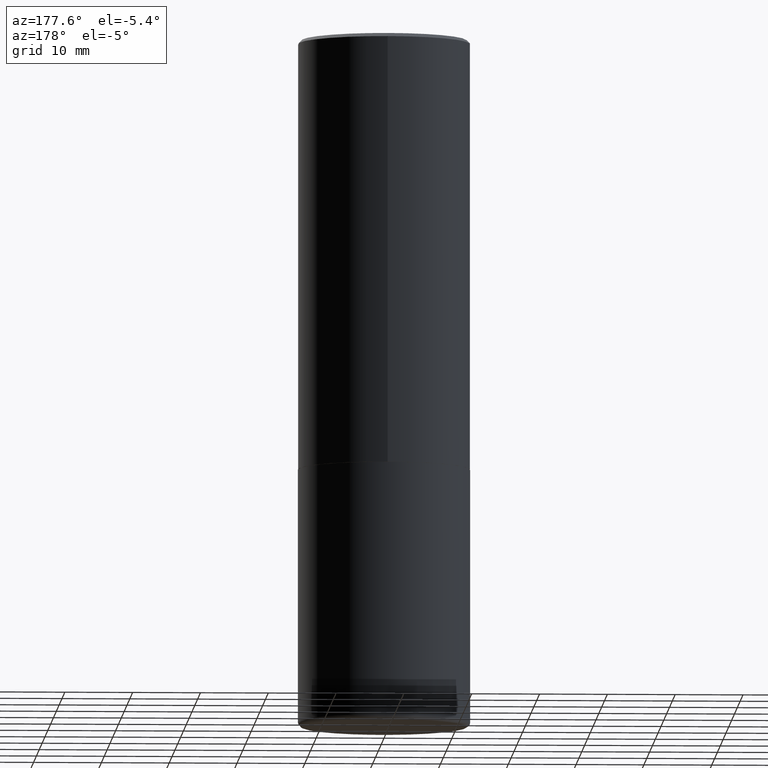
[diagram: clean part render]
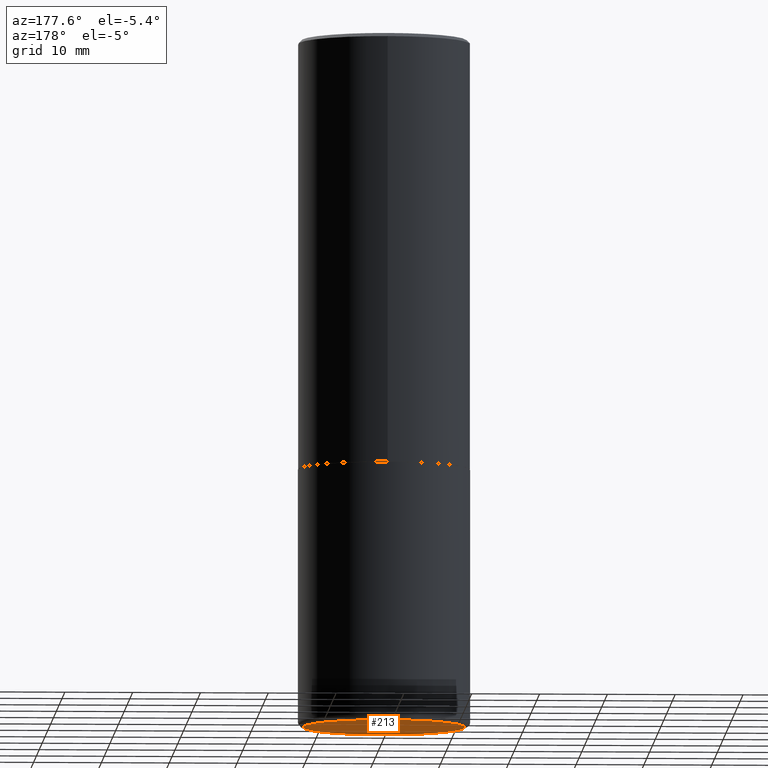
[diagram: same view with one face highlighted and labeled with its STEP entity id]
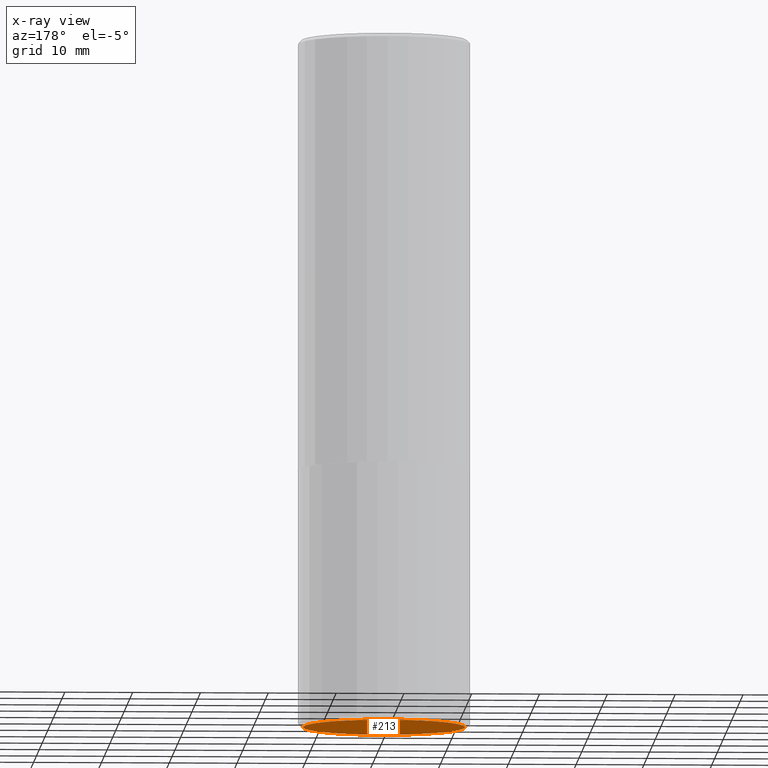
[diagram: x-ray of the same camera — body ghosted, the highlighted face saturated]
A machine part, auxiliary view. The second image highlights one B-rep face of the part: STEP entity #213.
The next image is the same camera in x-ray: the body ghosted, the highlighted face saturated — about 0% of this face is hidden behind the body in this view.
In plain terms, the highlighted planar face has unit normal (0, -0, -1).
Its self-contained STEP definition (entity closure, byte-faithful):
#49 = CARTESIAN_POINT ( 'NONE',  ( 0.4699999999999999734, -1.724791781388512737E-14, -4.000000000000000000 ) ) ;
#92 = DIRECTION ( 'NONE',  ( -2.445468806185136597E-29, 3.491481338843145583E-15, 1.000000000000000000 ) ) ;
#96 = VERTEX_POINT ( 'NONE', #49 ) ;
#118 = CARTESIAN_POINT ( 'NONE',  ( -0.4699999999999999734, -1.046742086685344905E-14, -4.000000000000000000 ) ) ;
#119 = DIRECTION ( 'NONE',  ( 2.438088387897960049E-29, -3.491481338843145188E-15, -1.000000000000000000 ) ) ;
#155 = CARTESIAN_POINT ( 'NONE',  ( 9.781875224740546387E-29, -1.396592535537258233E-14, -4.000000000000000000 ) ) ;
#158 = AXIS2_PLACEMENT_3D ( 'NONE', #250, #119, #248 ) ;
#168 = CIRCLE ( 'NONE', #219, 0.4699999999999999734 ) ;
#187 = CARTESIAN_POINT ( 'NONE',  ( 9.781875224740546387E-29, -1.396592535537258233E-14, -4.000000000000000000 ) ) ;
#192 = ORIENTED_EDGE ( 'NONE', *, *, #229, .F. ) ;
#213 = ADVANCED_FACE ( 'NONE', ( #405 ), #376, .T. ) ;
#219 = AXIS2_PLACEMENT_3D ( 'NONE', #187, #92, #312 ) ;
#229 = EDGE_CURVE ( 'NONE', #352, #96, #168, .T. ) ;
#248 = DIRECTION ( 'NONE',  ( -1.000000000000000000, 6.982962677686265922E-15, -4.876176775795935793E-29 ) ) ;
#250 = CARTESIAN_POINT ( 'NONE',  ( 9.781875224740546387E-29, -1.396592535537258233E-14, -4.000000000000000000 ) ) ;
#257 = DIRECTION ( 'NONE',  ( -2.445468806185136597E-29, 3.491481338843145583E-15, 1.000000000000000000 ) ) ;
#271 = CIRCLE ( 'NONE', #377, 0.4699999999999999734 ) ;
#280 = EDGE_CURVE ( 'NONE', #96, #352, #271, .T. ) ;
#312 = DIRECTION ( 'NONE',  ( 1.000000000000000000, -6.982962677686267499E-15, 0.000000000000000000 ) ) ;
#322 = EDGE_LOOP ( 'NONE', ( #418, #192 ) ) ;
#352 = VERTEX_POINT ( 'NONE', #118 ) ;
#376 = PLANE ( 'NONE',  #158 ) ;
#377 = AXIS2_PLACEMENT_3D ( 'NONE', #155, #257, #385 ) ;
#385 = DIRECTION ( 'NONE',  ( 1.000000000000000000, -6.982962677686267499E-15, 0.000000000000000000 ) ) ;
#405 = FACE_OUTER_BOUND ( 'NONE', #322, .T. ) ;
#418 = ORIENTED_EDGE ( 'NONE', *, *, #280, .F. ) ;